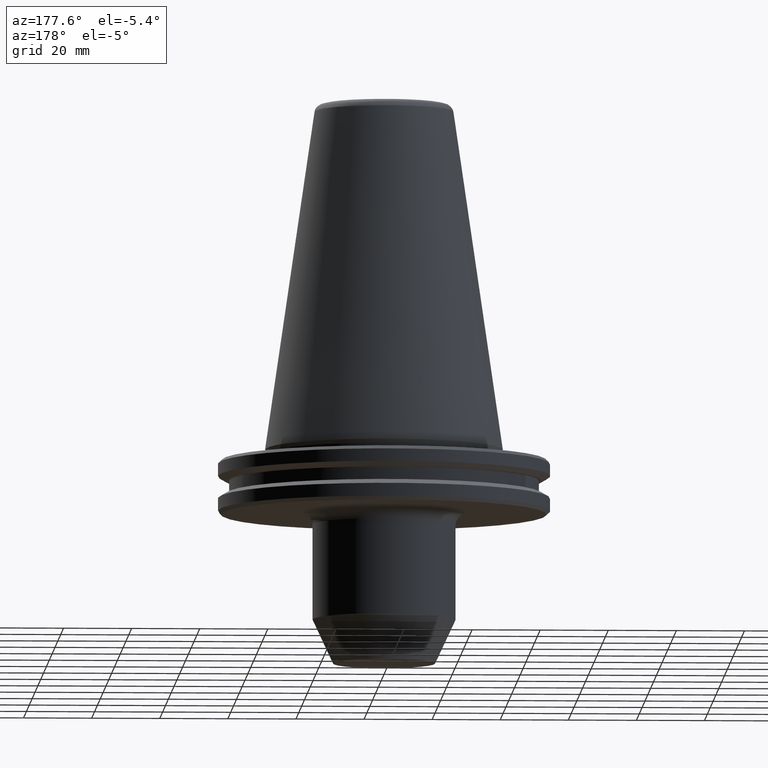
[diagram: clean part render]
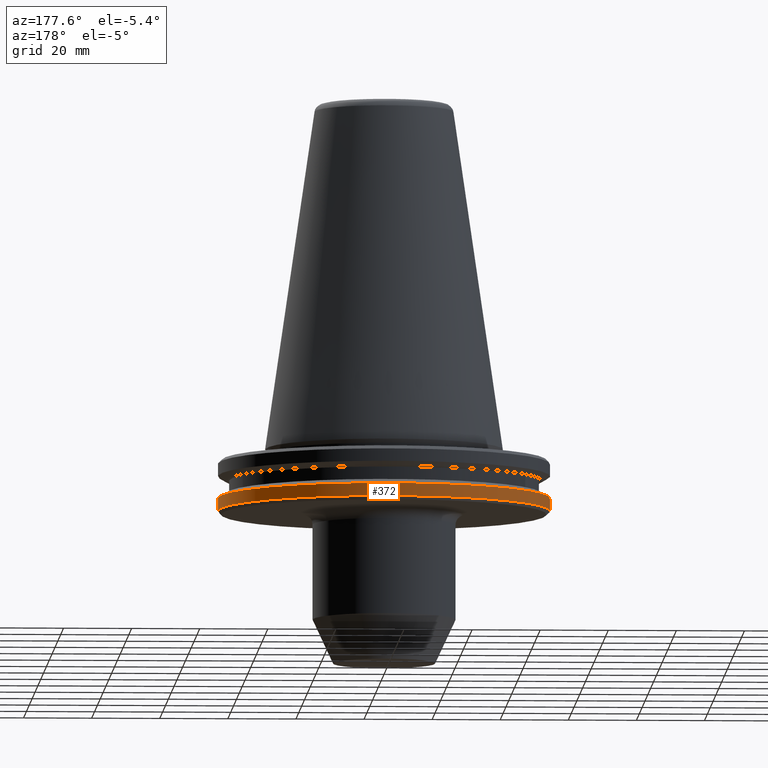
[diagram: same view with one face highlighted and labeled with its STEP entity id]
A machine part, auxiliary view. The second image highlights one B-rep face of the part: STEP entity #372.
In plain terms, the highlighted cylindrical surface (partial cylindrical patch) has radius 48.75 mm, axis along (-0, -0, 1).
Its self-contained STEP definition (entity closure, byte-faithful):
#2 = LINE ( 'NONE', #566, #674 ) ;
#19 = VERTEX_POINT ( 'NONE', #743 ) ;
#24 = DIRECTION ( 'NONE',  ( -0.0000000000000000000, -0.0000000000000000000, 1.000000000000000000 ) ) ;
#27 = DIRECTION ( 'NONE',  ( -0.0000000000000000000, -0.0000000000000000000, 1.000000000000000000 ) ) ;
#32 = EDGE_LOOP ( 'NONE', ( #323, #214, #52, #97 ) ) ;
#37 = CIRCLE ( 'NONE', #369, 48.75000000000018500 ) ;
#52 = ORIENTED_EDGE ( 'NONE', *, *, #511, .F. ) ;
#97 = ORIENTED_EDGE ( 'NONE', *, *, #871, .F. ) ;
#111 = CIRCLE ( 'NONE', #593, 48.75000000000018500 ) ;
#186 = DIRECTION ( 'NONE',  ( 1.000000000000000000, 0.0000000000000000000, 0.0000000000000000000 ) ) ;
#214 = ORIENTED_EDGE ( 'NONE', *, *, #592, .T. ) ;
#249 = DIRECTION ( 'NONE',  ( -0.0000000000000000000, -0.0000000000000000000, 1.000000000000000000 ) ) ;
#266 = VERTEX_POINT ( 'NONE', #605 ) ;
#288 = AXIS2_PLACEMENT_3D ( 'NONE', #651, #27, #186 ) ;
#323 = ORIENTED_EDGE ( 'NONE', *, *, #710, .T. ) ;
#343 = CYLINDRICAL_SURFACE ( 'NONE', #288, 48.75000000000018500 ) ;
#369 = AXIS2_PLACEMENT_3D ( 'NONE', #570, #24, #493 ) ;
#372 = ADVANCED_FACE ( 'NONE', ( #567 ), #343, .T. ) ;
#473 = VECTOR ( 'NONE', #249, 1000.000000000000000 ) ;
#493 = DIRECTION ( 'NONE',  ( 1.000000000000000000, 0.0000000000000000000, 0.0000000000000000000 ) ) ;
#511 = EDGE_CURVE ( 'NONE', #868, #715, #111, .T. ) ;
#535 = CARTESIAN_POINT ( 'NONE',  ( -48.75000000000018500, 5.970153145843369200E-015, -14.34759526419204800 ) ) ;
#545 = DIRECTION ( 'NONE',  ( -0.0000000000000000000, -0.0000000000000000000, 1.000000000000000000 ) ) ;
#566 = CARTESIAN_POINT ( 'NONE',  ( -48.75000000000018500, 5.970153145843369200E-015, 101.7499999999999600 ) ) ;
#567 = FACE_OUTER_BOUND ( 'NONE', #32, .T. ) ;
#570 = CARTESIAN_POINT ( 'NONE',  ( 0.0000000000000000000, 0.0000000000000000000, -18.09999999999950400 ) ) ;
#592 = EDGE_CURVE ( 'NONE', #19, #715, #2, .T. ) ;
#593 = AXIS2_PLACEMENT_3D ( 'NONE', #725, #693, #681 ) ;
#605 = CARTESIAN_POINT ( 'NONE',  ( 48.75000000000018500, 0.0000000000000000000, -18.09999999999950400 ) ) ;
#638 = CARTESIAN_POINT ( 'NONE',  ( 48.75000000000018500, 0.0000000000000000000, -14.34759526419204800 ) ) ;
#651 = CARTESIAN_POINT ( 'NONE',  ( 0.0000000000000000000, 0.0000000000000000000, 101.7499999999999600 ) ) ;
#674 = VECTOR ( 'NONE', #545, 1000.000000000000000 ) ;
#677 = LINE ( 'NONE', #712, #473 ) ;
#681 = DIRECTION ( 'NONE',  ( 1.000000000000000000, 0.0000000000000000000, 0.0000000000000000000 ) ) ;
#693 = DIRECTION ( 'NONE',  ( -0.0000000000000000000, -0.0000000000000000000, 1.000000000000000000 ) ) ;
#710 = EDGE_CURVE ( 'NONE', #266, #19, #37, .T. ) ;
#712 = CARTESIAN_POINT ( 'NONE',  ( 48.75000000000018500, 0.0000000000000000000, 101.7499999999999600 ) ) ;
#715 = VERTEX_POINT ( 'NONE', #535 ) ;
#725 = CARTESIAN_POINT ( 'NONE',  ( 0.0000000000000000000, 0.0000000000000000000, -14.34759526419204800 ) ) ;
#743 = CARTESIAN_POINT ( 'NONE',  ( -48.75000000000018500, 5.970153145843369200E-015, -18.09999999999950400 ) ) ;
#868 = VERTEX_POINT ( 'NONE', #638 ) ;
#871 = EDGE_CURVE ( 'NONE', #266, #868, #677, .T. ) ;